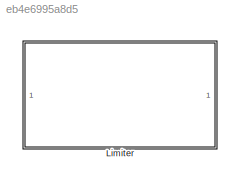
MODEL slx_eb4e6995a8d5
KIND library
CONFIG AbsTol = auto
CONFIG EnableMultiTasking = off
CONFIG FixedStep = auto
CONFIG MaxStep = auto
CONFIG MinStep = auto
CONFIG RelTol = 1e-3
CONFIG SampleTimeConstraint = Unconstrained
CONFIG SolverName = VariableStepAuto
CONFIG StartTime = 0.0
CONFIG StopTime = 10.0
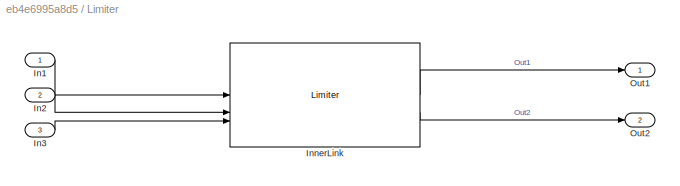
BLOCK [SubSystem] Limiter
  ShowPortLabels = SignalName
BLOCK [Inport] Limiter/In1
BLOCK [Inport] Limiter/In2
  Port = 2
BLOCK [Inport] Limiter/In3
  Port = 3
BLOCK [Reference] Limiter/InnerLink  REF=LimiterBtc/Limiter
  SourceBlock = LimiterBtc/Limiter
  SourceProductName = Bose Blocklib
  SourceType = Blocklib Limiter
BLOCK [Outport] Limiter/Out1
BLOCK [Outport] Limiter/Out2
  Port = 2
LINE Limiter/In1:1 -> Limiter/InnerLink:1
LINE Limiter/In2:1 -> Limiter/InnerLink:2
LINE Limiter/In3:1 -> Limiter/InnerLink:3
LINE Limiter/InnerLink:1 -> Limiter/Out1:1
LINE Limiter/InnerLink:2 -> Limiter/Out2:1
